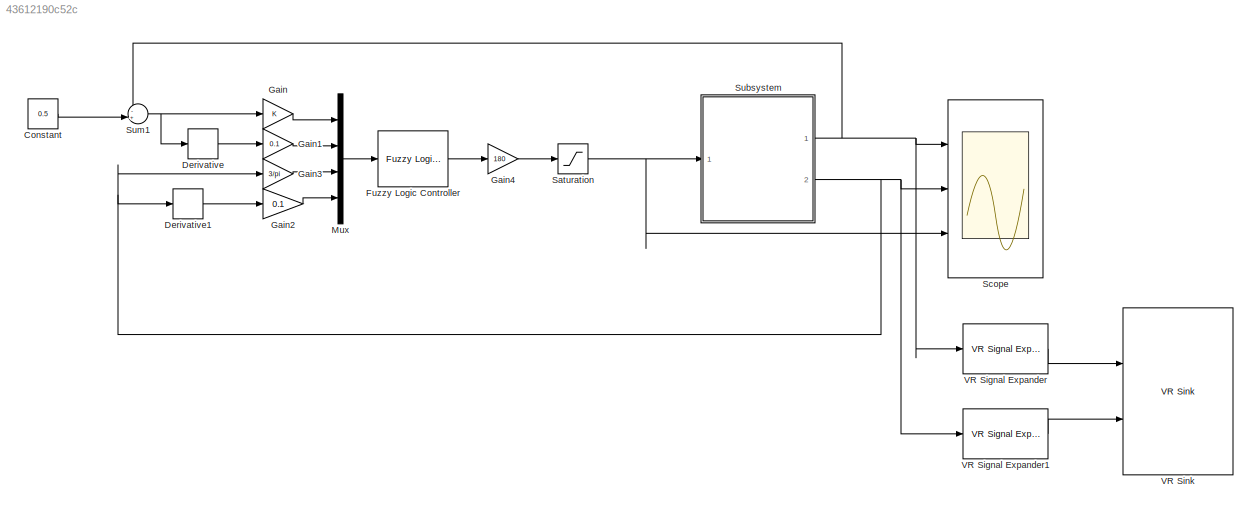
MODEL slx_43612190c52c
KIND model
CONFIG AbsTol = auto
CONFIG EnableMultiTasking = off
CONFIG FixedStep = 0.1
CONFIG MaxStep = auto
CONFIG MinStep = auto
CONFIG RelTol = 1e-3
CONFIG SampleTimeConstraint = Unconstrained
CONFIG SolverName = FixedStepAuto
CONFIG StartTime = 0.0
CONFIG StopTime = 10
BLOCK [Constant] Constant
  Value = 0.5
BLOCK [Derivative] Derivative
BLOCK [Derivative] Derivative1
BLOCK [Reference] Fuzzy Logic Controller  REF=fuzblock/Fuzzy Logic   (lib defined in mdl_858b3b3e7478)
Controller
  Ports = [1, 1]
  SourceBlock = fuzblock/Fuzzy Logic \nController
  SourceProductBaseCode = FL
  SourceType = Fuzzy Inference System
BLOCK [Gain] Gain
BLOCK [Gain] Gain1
  Gain = 0.1
BLOCK [Gain] Gain2
  Gain = 0.1
BLOCK [Gain] Gain3
  Gain = 3/pi
BLOCK [Gain] Gain4
  Gain = 180
BLOCK [Mux] Mux
  DisplayOption = bar
  Ports = [4, 1]
BLOCK [Saturate] Saturation
  LowerLimit = -12
  UpperLimit = 12
BLOCK [Scope] Scope
  Floating = off
  NumInputPorts = 3
  Ports = [3]
  ScopeSpecificationString = Simulink.scopes.TimeScopeBlockCfg('CurrentConfiguration', extmgr.ConfigurationSet(extmgr.Configuration('Core','General UI',true),extmgr.Configuration('Core','Source UI',true),extmgr.Configuration('Sources','WiredSimulink',true),extmgr.Configuration('Visuals','Time Domain',true,'SerializedDisplays',{struct('MinYLimReal','-0.0625','MaxYLimReal','0.56248','YLabelReal','','MinYLimMag','0.00000','MaxYL...<+2817ch>
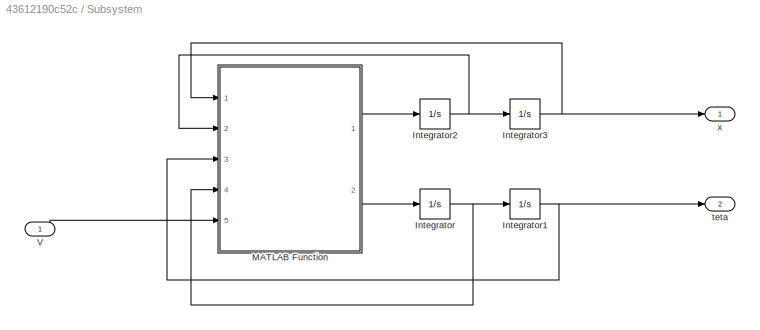
BLOCK [SubSystem] Subsystem
  Ports = [1, 2]
  RequestExecContextInheritance = off
BLOCK [Integrator] Subsystem/Integrator
  Ports = [1, 1]
BLOCK [Integrator] Subsystem/Integrator1
  Ports = [1, 1]
BLOCK [Integrator] Subsystem/Integrator2
  Ports = [1, 1]
BLOCK [Integrator] Subsystem/Integrator3
  Ports = [1, 1]
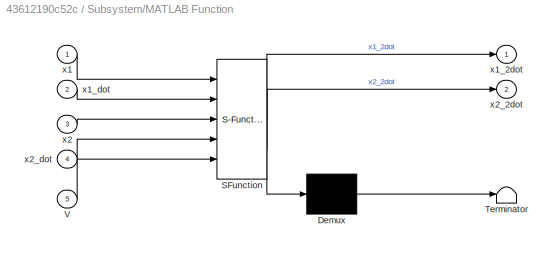
BLOCK [SubSystem] Subsystem/MATLAB Function
  ErrorFcn = Stateflow.Translate.translate
  PermitHierarchicalResolution = ExplicitOnly
  Ports = [5, 2]
  RequestExecContextInheritance = off
  SFBlockType = MATLAB Function
  TreatAsAtomicUnit = on
BLOCK [Demux] Subsystem/MATLAB Function/ Demux 
  Outputs = 1
  Ports = [1, 1]
BLOCK [S-Function] Subsystem/MATLAB Function/ SFunction 
  EnableBusSupport = on
  FunctionName = sf_sfun
  PortCounts = [5 3]
  Ports = [5, 3]
  SFcnIsStateOwnerBlock = off
  SFunctionDeploymentMode = off
  Tag = Stateflow S-Function 2
BLOCK [Terminator] Subsystem/MATLAB Function/ Terminator 
BLOCK [Inport] Subsystem/MATLAB Function/V
  Port = 5
BLOCK [Inport] Subsystem/MATLAB Function/x1
BLOCK [Outport] Subsystem/MATLAB Function/x1_2dot
BLOCK [Inport] Subsystem/MATLAB Function/x1_dot
  Port = 2
BLOCK [Inport] Subsystem/MATLAB Function/x2
  Port = 3
BLOCK [Outport] Subsystem/MATLAB Function/x2_2dot
  Port = 2
BLOCK [Inport] Subsystem/MATLAB Function/x2_dot
  Port = 4
BLOCK [Inport] Subsystem/V
BLOCK [Outport] Subsystem/teta
  Port = 2
BLOCK [Outport] Subsystem/x
BLOCK [Sum] Sum1
  Inputs = -+|
  Ports = [2, 1]
BLOCK [Reference] VR Signal Expander  REF=vrlib/VR Signal Expander
  Ports = [1, 1]
  SourceBlock = vrlib/VR Signal Expander
  SourceProductBaseCode = SL
  SourceType = VR Signal Expander
BLOCK [Reference] VR Signal Expander1  REF=vrlib/VR Signal Expander
  Ports = [1, 1]
  SourceBlock = vrlib/VR Signal Expander
  SourceProductBaseCode = SL
  SourceType = VR Signal Expander
BLOCK [Reference] VR Sink  REF=vrlib/VR Sink
  InstantiateOnLoad = on
  Ports = [2]
  SourceBlock = vrlib/VR Sink
  SourceProductBaseCode = SL
  SourceType = Virtual Reality Sink
LINE Constant:1 -> Sum1:2
LINE Derivative1:1 -> Gain2:1
LINE Derivative:1 -> Gain1:1
LINE Fuzzy Logic Controller:1 -> Gain4:1
LINE Gain1:1 -> Mux:2
LINE Gain2:1 -> Mux:4
LINE Gain3:1 -> Mux:3
LINE Gain4:1 -> Saturation:1
LINE Gain:1 -> Mux:1
LINE Mux:1 -> Fuzzy Logic Controller:1
NET Saturation:1 -> Scope:3, Subsystem:1
NET Subsystem/Integrator1:1 -> Subsystem/MATLAB Function:3, Subsystem/teta:1
NET Subsystem/Integrator2:1 -> Subsystem/Integrator3:1, Subsystem/MATLAB Function:2
NET Subsystem/Integrator3:1 -> Subsystem/MATLAB Function:1, Subsystem/x:1
NET Subsystem/Integrator:1 -> Subsystem/Integrator1:1, Subsystem/MATLAB Function:4
LINE Subsystem/MATLAB Function:1 -> Subsystem/Integrator2:1
LINE Subsystem/MATLAB Function:2 -> Subsystem/Integrator:1
LINE Subsystem/V:1 -> Subsystem/MATLAB Function:5
NET Subsystem:1 -> Scope:1, Sum1:1, VR Signal Expander:1
NET Subsystem:2 -> Derivative1:1, Gain3:1, Scope:2, VR Signal Expander1:1
NET Sum1:1 -> Derivative:1, Gain:1
LINE VR Signal Expander1:1 -> VR Sink:2
LINE VR Signal Expander:1 -> VR Sink:1
note: NET lines group one-source signal fan-out (src -> all destinations, sorted); 1:1 wires keep LINE
CHART Subsystem/MATLAB Function states=1 transitions=1
  STATE_LABEL 'eML_blk_kernel()'
  STATE_LABEL 'SCRIPT:\nfunction [x1_2dot,x2_2dot] = fcn(x1,x1_dot,x2,x2_dot,V)\nm1=1;m2=5;l=0.75;g=9.81;B=123.2;R=2.6;KT=0.007;KE=0.007;rp=0.02;z=15;\n\nx1_2dot =(KT*V*rp*z - KE*KT*x1_dot*z^2 - B*R*rp^2*x1_dot + R*g*m1*rp^2*cos(x2)*sin(x2) + R*l*m1*rp^2*x2_dot^2*sin(x2))/(R*rp^2*(- m1*cos(x2)^2 + m1 + m2));\n \n \nx2_2dot =-(R*g*m1*rp^2*sin(x2) - KE*KT*x1_dot*z^2*cos(x2) - B*R*rp^2*x1_dot*cos(x2) + R*g*m2*rp^2*sin(x2)...<+102ch>'
CHART  states=0 transitions=0
